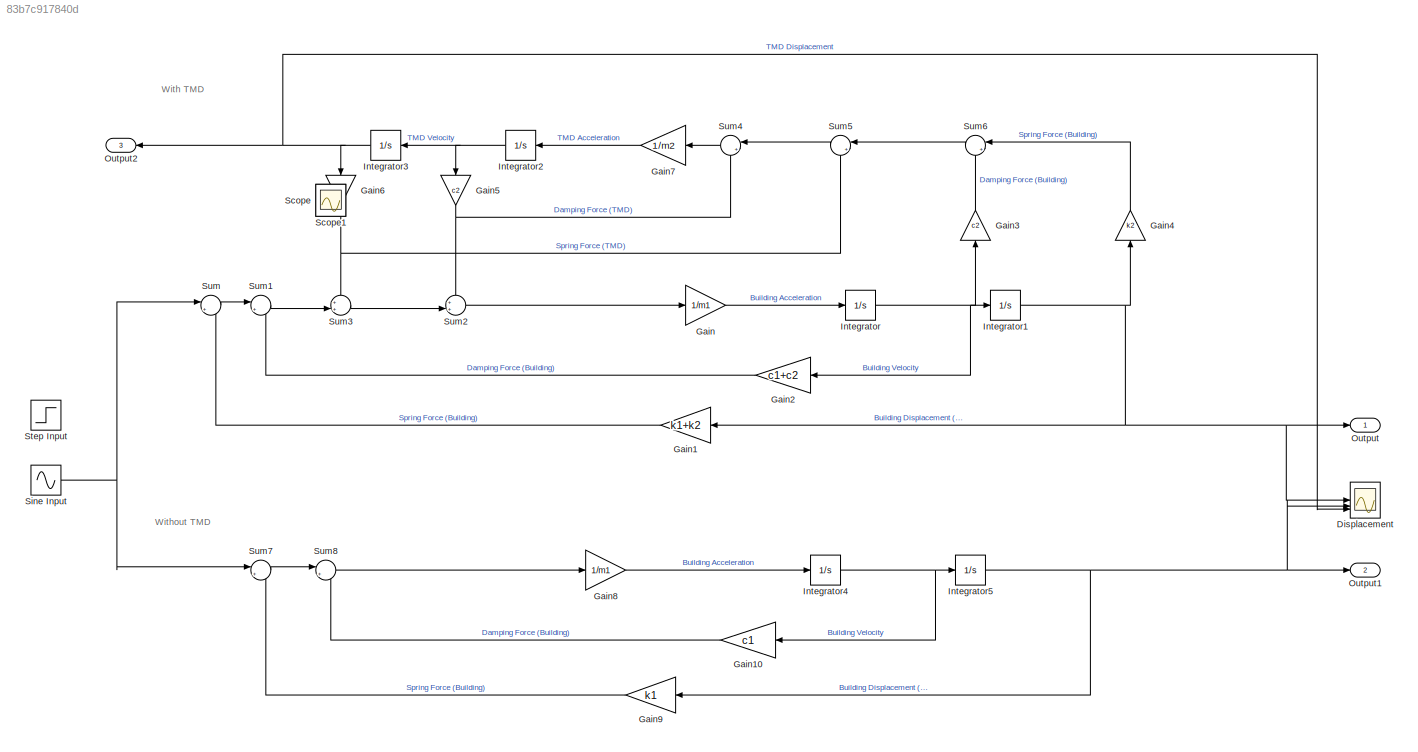
MODEL slx_83b7c917840d
KIND model
CONFIG AbsTol = auto
CONFIG EnableMultiTasking = off
CONFIG FixedStep = 0.02
CONFIG MaxStep = auto
CONFIG MinStep = auto
CONFIG RelTol = 1e-3
CONFIG SampleTimeConstraint = Unconstrained
CONFIG SolverName = ode4
CONFIG StartTime = 0.0
CONFIG StopTime = 180.0
BLOCK [Scope] Displacement
  Floating = off
  NumInputPorts = 3
  ScopeSpecificationString = Simulink.scopes.TimeScopeBlockCfg('CurrentConfiguration', extmgr.ConfigurationSet(extmgr.Configuration('Core','General UI',true),extmgr.Configuration('Core','Source UI',true),extmgr.Configuration('Sources','WiredSimulink',true),extmgr.Configuration('Visuals','Time Domain',true,'SerializedDisplays',{struct('MinYLimReal','-0.00059','MaxYLimReal','0.0006','YLabelReal','','MinYLimMag','0.00000','MaxYL...<+1552ch>
BLOCK [Gain] Gain
  Gain = 1/m1
BLOCK [Gain] Gain1
  Gain = k1+k2
BLOCK [Gain] Gain10
  Gain = c1
BLOCK [Gain] Gain2
  Gain = c1+c2
BLOCK [Gain] Gain3
  Gain = c2
  NameLocation = left
BLOCK [Gain] Gain4
  Gain = k2
  NameLocation = left
BLOCK [Gain] Gain5
  Gain = c2
  NameLocation = right
BLOCK [Gain] Gain6
  Gain = k2
  NameLocation = right
BLOCK [Gain] Gain7
  Gain = 1/m2
BLOCK [Gain] Gain8
  Gain = 1/m1
BLOCK [Gain] Gain9
  Gain = k1
BLOCK [Integrator] Integrator
BLOCK [Integrator] Integrator1
BLOCK [Integrator] Integrator2
BLOCK [Integrator] Integrator3
BLOCK [Integrator] Integrator4
BLOCK [Integrator] Integrator5
BLOCK [Outport] Output
BLOCK [Outport] Output1
  Port = 2
BLOCK [Outport] Output2
  Port = 3
BLOCK [Scope] Scope
  Floating = off
  IOType = viewer
  NumInputPorts = 1
  ScopeSpecificationString = Simulink.scopes.TimeScopeBlockCfg('CurrentConfiguration', extmgr.ConfigurationSet(extmgr.Configuration('Core','General UI',true),extmgr.Configuration('Core','Source UI',true),extmgr.Configuration('Sources','WiredSimulink',true,'DataLoggingVariableName','ScopeData1'),extmgr.Configuration('Visuals','Time Domain',true,'SerializedDisplays',{struct('MinYLimReal','-10.00000','MaxYLimReal','10.00000','YL...<+1483ch>
BLOCK [Scope] Scope1
  Floating = off
  IOType = viewer
  NumInputPorts = 1
  ScopeSpecificationString = Simulink.scopes.TimeScopeBlockCfg('CurrentConfiguration', extmgr.ConfigurationSet(extmgr.Configuration('Core','General UI',true),extmgr.Configuration('Core','Source UI',true),extmgr.Configuration('Sources','WiredSimulink',true,'DataLoggingVariableName','ScopeData2'),extmgr.Configuration('Visuals','Time Domain',true,'SerializedDisplays',{struct('MinYLimReal','-10.00000','MaxYLimReal','10.00000','YL...<+1454ch>
BLOCK [Sin] Sine Input
  Amplitude = F_mag
  Frequency = F_frq
  SampleTime = 0
BLOCK [Step] Step Input
  SampleTime = 0
BLOCK [Sum] Sum
  Inputs = |+-
BLOCK [Sum] Sum1
  Inputs = |+-
BLOCK [Sum] Sum2
  Inputs = ++|
BLOCK [Sum] Sum3
  Inputs = ++|
BLOCK [Sum] Sum4
  Inputs = |+-
BLOCK [Sum] Sum5
  Inputs = |+-
BLOCK [Sum] Sum6
  Inputs = |++
BLOCK [Sum] Sum7
  Inputs = |+-
BLOCK [Sum] Sum8
  Inputs = |+-
ANNOTATION (root): With TMD
ANNOTATION (root): Without TMD
LINE Gain10:1 -> Sum8:2
LINE Gain1:1 -> Sum:2
LINE Gain2:1 -> Sum1:2
LINE Gain3:1 -> Sum6:2
LINE Gain4:1 -> Sum6:1
NET Gain5:1 -> Sum2:1, Sum4:2
NET Gain6:1 -> Sum3:1, Sum5:2
LINE Gain7:1 -> Integrator2:1
LINE Gain8:1 -> Integrator4:1
LINE Gain9:1 -> Sum7:2
LINE Gain:1 -> Integrator:1
NET Integrator1:1 -> Displacement:1, Gain1:1, Gain4:1, Output:1
NET Integrator2:1 -> Gain5:1, Integrator3:1
NET Integrator3:1 -> Displacement:3, Gain6:1, Output2:1
NET Integrator4:1 -> Gain10:1, Integrator5:1
NET Integrator5:1 -> Displacement:2, Gain9:1, Output1:1
NET Integrator:1 -> Gain2:1, Gain3:1, Integrator1:1
NET Sine Input:1 -> Sum7:1, Sum:1
LINE Sum1:1 -> Sum3:2
LINE Sum2:1 -> Gain:1
LINE Sum3:1 -> Sum2:2
LINE Sum4:1 -> Gain7:1
LINE Sum5:1 -> Sum4:1
LINE Sum6:1 -> Sum5:1
LINE Sum7:1 -> Sum8:1
LINE Sum8:1 -> Gain8:1
LINE Sum:1 -> Sum1:1
note: NET lines group one-source signal fan-out (src -> all destinations, sorted); 1:1 wires keep LINE
